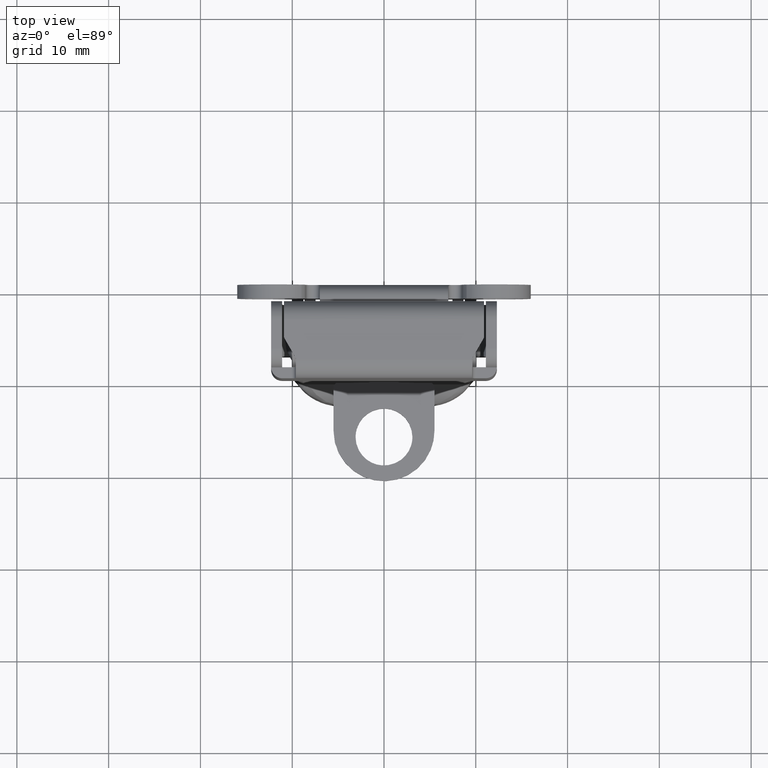
[diagram: clean part render]
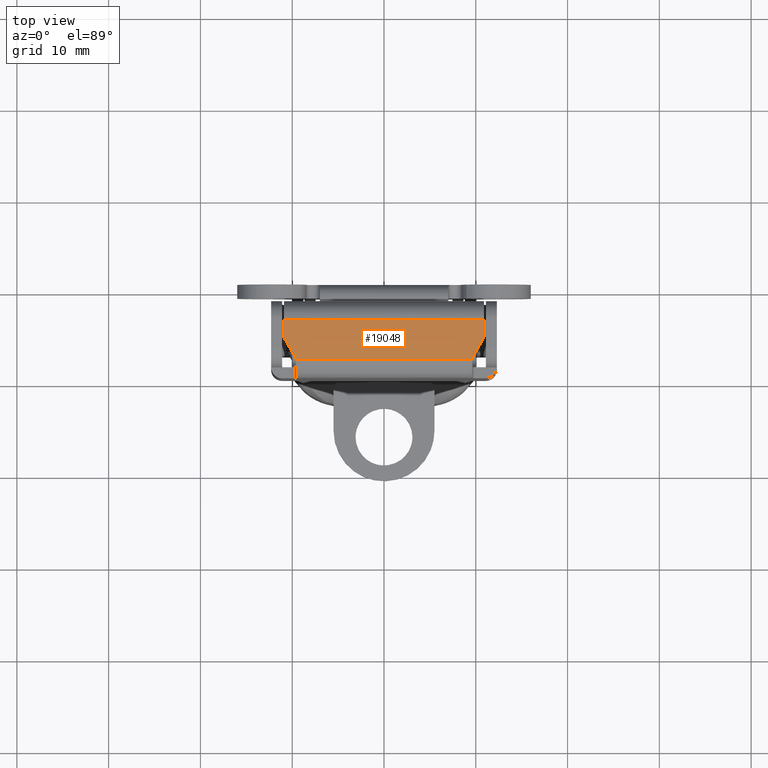
[diagram: same view with one face highlighted and labeled with its STEP entity id]
A machine part, top view. The second image highlights one B-rep face of the part: STEP entity #19048.
In plain terms, the highlighted face is a freeform B-spline surface patch.
Its self-contained STEP definition (entity closure, byte-faithful):
#17723=CARTESIAN_POINT('',(-10.899999999975501,-3.900000000054035,31.000000000059998));
#17724=VERTEX_POINT('',#17723);
#17740=CARTESIAN_POINT('',(10.899999999995980,-3.900000000082175,31.000000000059998));
#17741=VERTEX_POINT('',#17740);
#17742=CARTESIAN_POINT('',(10.899999999995980,-3.900000000082175,31.000000000059998));
#17743=CARTESIAN_POINT('',(-10.899999999975501,-3.900000000054035,31.000000000059998));
#17744=QUASI_UNIFORM_CURVE('',1,(#17742,#17743),.UNSPECIFIED.,.F.,.U.);
#17745=EDGE_CURVE('',#17741,#17724,#17744,.T.);
#18375=CARTESIAN_POINT('',(-10.899999999977640,-5.766025403840360,31.000000000059998));
#18376=VERTEX_POINT('',#18375);
#18377=CARTESIAN_POINT('',(-10.833012701870240,-6.016025403840639,31.000000000059998));
#18378=VERTEX_POINT('',#18377);
#18379=CARTESIAN_POINT('',(-10.899999999977640,-5.766025403840360,31.000000000059998));
#18380=CARTESIAN_POINT('',(-10.899999999977982,-5.900000000056043,31.000000000059998));
#18381=CARTESIAN_POINT('',(-10.833012701870389,-6.016025403840724,31.000000000059998));
#18389=(BOUNDED_CURVE()B_SPLINE_CURVE(2,(#18379,#18380,#18381),.UNSPECIFIED.,.F.,.U.)CURVE()GEOMETRIC_REPRESENTATION_ITEM()QUASI_UNIFORM_CURVE()RATIONAL_B_SPLINE_CURVE((1.0,0.965925826289011,1.0))REPRESENTATION_ITEM(''));
#18390=EDGE_CURVE('',#18376,#18378,#18389,.T.);
#18427=CARTESIAN_POINT('',(-9.686987298093330,-8.000999629957988,31.000000000059998));
#18428=VERTEX_POINT('',#18427);
#18429=CARTESIAN_POINT('',(-9.686987298093330,-8.000999629957988,31.000000000059998));
#18430=CARTESIAN_POINT('',(-10.833012701870240,-6.016025403840639,31.000000000059998));
#18431=QUASI_UNIFORM_CURVE('',1,(#18429,#18430),.UNSPECIFIED.,.F.,.U.);
#18432=EDGE_CURVE('',#18428,#18378,#18431,.T.);
#18464=CARTESIAN_POINT('',(-9.619999999986019,-8.250999629958271,31.000000000059998));
#18465=VERTEX_POINT('',#18464);
#18466=CARTESIAN_POINT('',(-9.619999999986019,-8.250999629958271,31.000000000059998));
#18467=CARTESIAN_POINT('',(-9.619999999986140,-8.117025033742038,31.000000000060005));
#18468=CARTESIAN_POINT('',(-9.686987298093332,-8.000999629957988,31.000000000059998));
#18476=(BOUNDED_CURVE()B_SPLINE_CURVE(2,(#18466,#18467,#18468),.UNSPECIFIED.,.F.,.U.)CURVE()GEOMETRIC_REPRESENTATION_ITEM()QUASI_UNIFORM_CURVE()RATIONAL_B_SPLINE_CURVE((1.0,0.965925826289373,1.0))REPRESENTATION_ITEM(''));
#18477=EDGE_CURVE('',#18465,#18428,#18476,.T.);
#18517=CARTESIAN_POINT('',(9.686987298102880,-8.000999629983850,31.000000000059998));
#18518=VERTEX_POINT('',#18517);
#18519=CARTESIAN_POINT('',(9.619999999995169,-8.250999629983340,31.000000000059998));
#18520=VERTEX_POINT('',#18519);
#18521=CARTESIAN_POINT('',(9.686987298102880,-8.000999629983850,31.000000000059998));
#18522=CARTESIAN_POINT('',(9.619999999995159,-8.117025033768048,31.000000000060002));
#18523=CARTESIAN_POINT('',(9.619999999995159,-8.250999629983369,31.000000000059998));
#18531=(BOUNDED_CURVE()B_SPLINE_CURVE(2,(#18521,#18522,#18523),.UNSPECIFIED.,.F.,.U.)CURVE()GEOMETRIC_REPRESENTATION_ITEM()QUASI_UNIFORM_CURVE()RATIONAL_B_SPLINE_CURVE((1.0,0.965925826289184,1.0))REPRESENTATION_ITEM(''));
#18532=EDGE_CURVE('',#18518,#18520,#18531,.T.);
#18569=CARTESIAN_POINT('',(10.833012701885361,-6.016025403868840,31.000000000059998));
#18570=VERTEX_POINT('',#18569);
#18571=CARTESIAN_POINT('',(10.833012701885361,-6.016025403868840,31.000000000059998));
#18572=CARTESIAN_POINT('',(9.686987298102880,-8.000999629983850,31.000000000059998));
#18573=QUASI_UNIFORM_CURVE('',1,(#18571,#18572),.UNSPECIFIED.,.F.,.U.);
#18574=EDGE_CURVE('',#18570,#18518,#18573,.T.);
#18606=CARTESIAN_POINT('',(10.899999999993460,-5.766025403869350,31.000000000059998));
#18607=VERTEX_POINT('',#18606);
#18608=CARTESIAN_POINT('',(10.833012701885361,-6.016025403868842,31.000000000059998));
#18609=CARTESIAN_POINT('',(10.899999999993186,-5.900000000084380,31.000000000060002));
#18610=CARTESIAN_POINT('',(10.899999999993179,-5.766025403868780,31.000000000059998));
#18618=(BOUNDED_CURVE()B_SPLINE_CURVE(2,(#18608,#18609,#18610),.UNSPECIFIED.,.F.,.U.)CURVE()GEOMETRIC_REPRESENTATION_ITEM()QUASI_UNIFORM_CURVE()RATIONAL_B_SPLINE_CURVE((1.0,0.965925826289050,1.0))REPRESENTATION_ITEM(''));
#18619=EDGE_CURVE('',#18570,#18607,#18618,.T.);
#18656=CARTESIAN_POINT('',(10.899999999995980,-3.900000000082175,31.000000000059998));
#18657=CARTESIAN_POINT('',(10.899999999993460,-5.766025403869350,31.000000000059998));
#18658=QUASI_UNIFORM_CURVE('',1,(#18656,#18657),.UNSPECIFIED.,.F.,.U.);
#18659=EDGE_CURVE('',#17741,#18607,#18658,.T.);
#18715=CARTESIAN_POINT('',(-10.899999999977640,-5.766025403840360,31.000000000059998));
#18716=CARTESIAN_POINT('',(-10.899999999975501,-3.900000000054035,31.000000000059998));
#18717=QUASI_UNIFORM_CURVE('',1,(#18715,#18716),.UNSPECIFIED.,.F.,.U.);
#18718=EDGE_CURVE('',#18376,#17724,#18717,.T.);
#18993=CARTESIAN_POINT('',(-9.619999999930370,-8.300000000035951,31.000000000058300));
#18994=VERTEX_POINT('',#18993);
#19008=CARTESIAN_POINT('',(-9.619999999986019,-8.250999629958271,31.000000000059998));
#19009=CARTESIAN_POINT('',(-9.619999999930370,-8.300000000035951,31.000000000058300));
#19010=QUASI_UNIFORM_CURVE('',1,(#19008,#19009),.UNSPECIFIED.,.F.,.U.);
#19011=EDGE_CURVE('',#18465,#18994,#19010,.T.);
#19019=CARTESIAN_POINT('',(-11.988909957723690,-8.519779991506994,31.000000000061458));
#19020=CARTESIAN_POINT('',(11.988910542463600,-8.519779991506994,31.000000000029541));
#19021=CARTESIAN_POINT('',(-11.988909957723690,-3.680219890565796,31.000000000061458));
#19022=CARTESIAN_POINT('',(11.988910542463600,-3.680219890565796,31.000000000029541));
#19023=B_SPLINE_SURFACE_WITH_KNOTS('',1,1,((#19019,#19021),(#19020,#19022)),.UNSPECIFIED.,.F.,.F.,.U.,(2,2),(2,2),(0.0,23.977820500187288),(0.0,4.839560100941197),.UNSPECIFIED.);
#19024=ORIENTED_EDGE('',*,*,#18659,.F.);
#19025=ORIENTED_EDGE('',*,*,#17745,.T.);
#19026=ORIENTED_EDGE('',*,*,#18718,.F.);
#19027=ORIENTED_EDGE('',*,*,#18390,.T.);
#19028=ORIENTED_EDGE('',*,*,#18432,.F.);
#19029=ORIENTED_EDGE('',*,*,#18477,.F.);
#19030=ORIENTED_EDGE('',*,*,#19011,.T.);
#19031=CARTESIAN_POINT('',(9.620000000087199,-8.300000000035951,31.000000000032699));
#19032=VERTEX_POINT('',#19031);
#19033=CARTESIAN_POINT('',(-9.619999999930370,-8.300000000035951,31.000000000058300));
#19034=CARTESIAN_POINT('',(9.620000000087199,-8.300000000035951,31.000000000032699));
#19035=QUASI_UNIFORM_CURVE('',1,(#19033,#19034),.UNSPECIFIED.,.F.,.U.);
#19036=EDGE_CURVE('',#18994,#19032,#19035,.T.);
#19037=ORIENTED_EDGE('',*,*,#19036,.T.);
#19038=CARTESIAN_POINT('',(9.619999999995169,-8.250999629983340,31.000000000059998));
#19039=CARTESIAN_POINT('',(9.620000000087199,-8.300000000035951,31.000000000032699));
#19040=QUASI_UNIFORM_CURVE('',1,(#19038,#19039),.UNSPECIFIED.,.F.,.U.);
#19041=EDGE_CURVE('',#18520,#19032,#19040,.T.);
#19042=ORIENTED_EDGE('',*,*,#19041,.F.);
#19043=ORIENTED_EDGE('',*,*,#18532,.F.);
#19044=ORIENTED_EDGE('',*,*,#18574,.F.);
#19045=ORIENTED_EDGE('',*,*,#18619,.T.);
#19046=EDGE_LOOP('',(#19024,#19025,#19026,#19027,#19028,#19029,#19030,#19037,#19042,#19043,#19044,#19045));
#19047=FACE_OUTER_BOUND('',#19046,.T.);
#19048=ADVANCED_FACE('',(#19047),#19023,.T.);